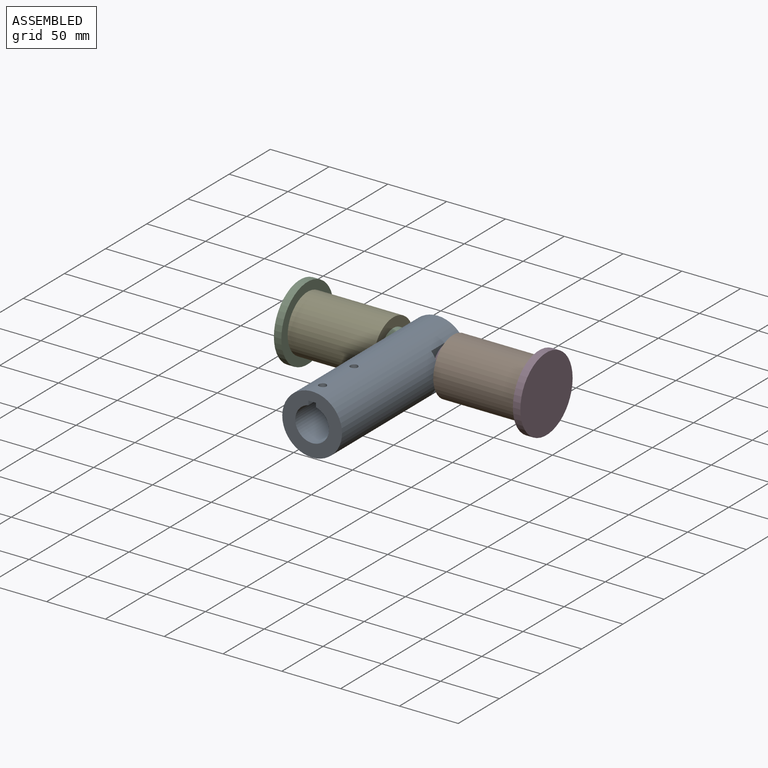
[diagram: assembled view]
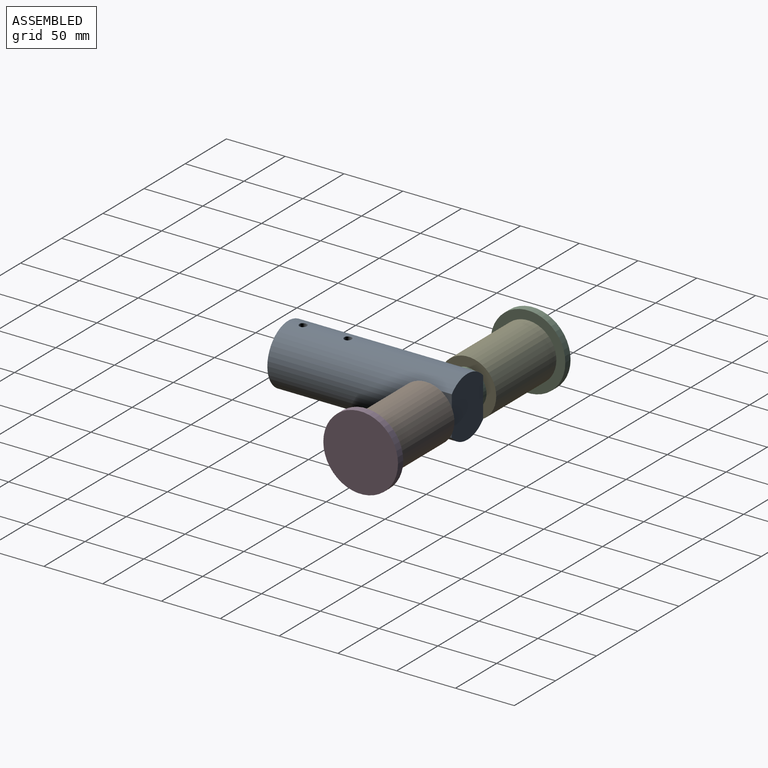
[diagram: assembled view, second angle]
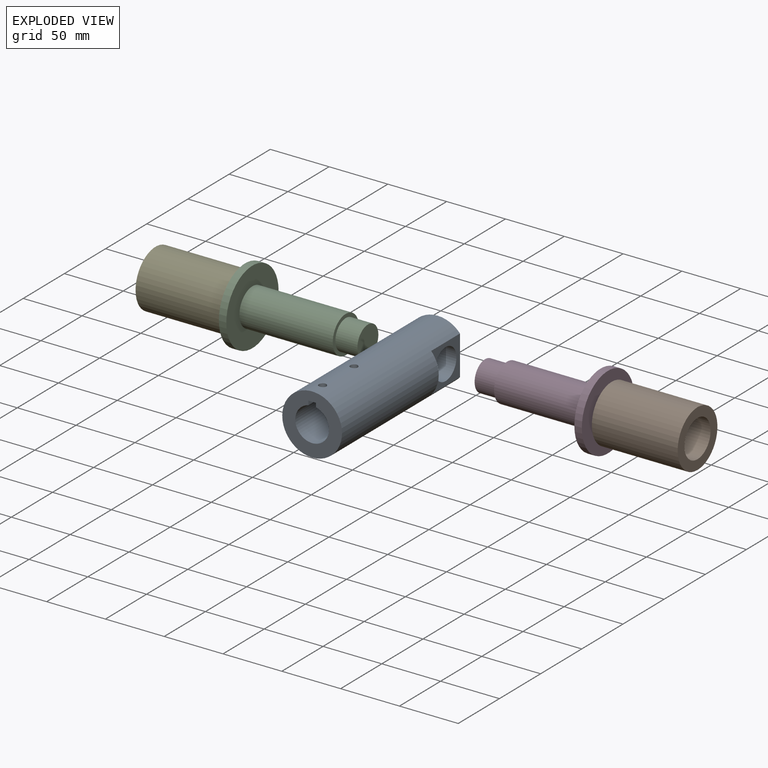
[diagram: exploded view]
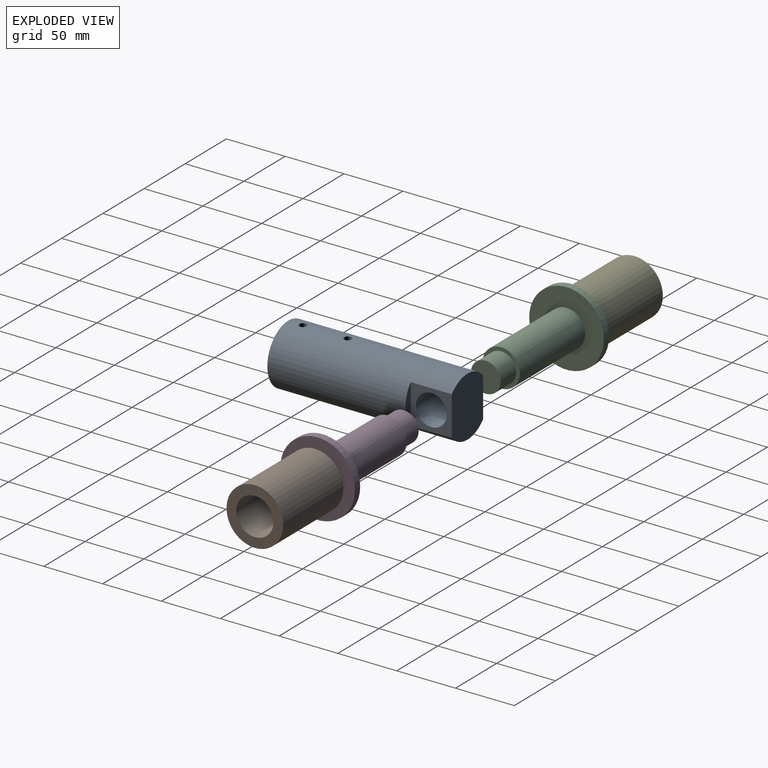
[diagram: exploded view, second angle]
ASSEMBLY  parts=5 mates=8
PART A: 17 faces, bbox 50.8x152.4x50.8 mm
  f0: cylinder r=25.4mm len=152.4mm, axis (0,-1,0), area 21693.9mm2, adj f1,f4,f10,f11,f12,f13,f14,f15
  f1: plane 50.8x38.1mm, normal (0,1,0), area 1734.4mm2, adj f0,f12,f14
  f2: plane 12.7x6.35mm, normal (0,0,-1), area 64.8mm2, adj f4,f5,f7,f11
  f3: plane 38.1x6.35mm, normal (0,0,-1), area 210.3mm2, adj f5,f7,f10,f11
  f4: plane 50.8x50.8mm, normal (0,-1,0), area 1359.3mm2, adj f0,f2,f5,f6,f7
  f5: plane 76.2x3.47mm, normal (1,0,0), area 264.2mm2, adj f2,f3,f4,f6,f8,f9
  f6: cylinder r=14.35mm len=76.2mm, axis (0,-1,0), area 6383mm2, adj f4,f5,f7,f9
  f7: plane 76.2x3.47mm, normal (-1,0,0), area 264.2mm2, adj f2,f3,f4,f6,f8,f9
  f8: plane 25.4x6.35mm, normal (0,0,-1), area 145.5mm2, adj f5,f7,f9,f10
  f9: plane 31.81x28.7mm, normal (0,-1,0), area 667.5mm2, adj f5,f6,f7,f8
  f10: cylinder r=3.17mm len=7.94mm, axis (0,0,-1), area 156.4mm2, adj f0,f3,f8
  f11: cylinder r=3.17mm len=7.94mm, axis (0,0,-1), area 156.4mm2, adj f0,f2,f3
  f12: plane 34.93x33.6mm, normal (-1,0,0), area 634.6mm2, adj f0,f1,f13,f16
  f13: plane 33.6x6.35mm, normal (0,1,0), area 146.2mm2, adj f0,f12
  f14: plane 34.93x33.6mm, normal (1,0,0), area 634.6mm2, adj f0,f1,f15,f16
  f15: plane 33.6x6.35mm, normal (0,1,0), area 146.2mm2, adj f0,f14
  f16: cylinder r=13.1mm len=38.1mm, axis (1,0,0), area 3135.4mm2, adj f12,f14
PART B: 4 faces, bbox 48.3x73x48.3 mm
  f0: cylinder r=15.88mm len=73.03mm, axis (0,-1,0), area 7283.9mm2, adj f2,f3
  f1: cylinder r=24.13mm len=73.03mm, axis (0,-1,0), area 11071.6mm2, adj f2,f3
  f2: plane 48.26x48.26mm, normal (0,1,0), area 1037.5mm2, adj f0,f1
  f3: plane 48.26x48.26mm, normal (0,-1,0), area 1037.5mm2, adj f0,f1
PART C: 7 faces, bbox 63.5x104.5x63.5 mm
  f0: plane 63.5x63.5mm, normal (0,1,0), area 3166.9mm2, adj f1
  f1: cylinder r=31.75mm len=63.5mm, axis (0,-1,0), area 1266.8mm2, adj f0,f2
  f2: plane 63.5x63.5mm, normal (0,-1,0), area 2375.2mm2, adj f1,f3
  f3: cylinder r=15.88mm len=79.38mm, axis (0,-1,0), area 7917.3mm2, adj f2,f4
  f4: plane 31.75x31.75mm, normal (0,-1,0), area 285mm2, adj f3,f5
  f5: cylinder r=12.7mm len=25.4mm, axis (0,-1,0), area 1499.9mm2, adj f4,f6
  f6: plane 25.4x25.4mm, normal (0,-1,0), area 506.7mm2, adj f5
PART D: same geometry as C
PART E: same geometry as B
PLACE A t=(-21.94,-67.62,31.87)mm fixed
PLACE B rot(axis=(-0.58,-0.58,-0.58),120deg) t=(3.46,67.31,31.87)mm
PLACE C rot(axis=(-0.58,0.58,0.58),120deg) t=(-22.2,67.31,31.87)mm
PLACE D rot(axis=(-0.58,-0.58,-0.58),120deg) t=(-21.69,67.31,31.87)mm
PLACE E rot(axis=(0.71,-0.71,0),180deg) t=(-47.34,67.31,31.87)mm
MATE fastened D.f1 <-> B.f0  axis (-1,0,0) through (76.48,67.31,31.87)mm
MATE planar D.f1 <-> A.f14  axis (-1,0,0) through (-2.89,67.31,31.87)mm
MATE planar C.f1 <-> A.f16  axis (1,0,0) through (-40.99,67.31,31.87)mm
MATE cylindrical C.f1 <-> E.f0  axis (1,0,0) through (-80.68,67.31,31.87)mm
MATE cylindrical A.f16 <-> D.f1  axis (1,0,0) through (-21.94,67.31,31.87)mm
MATE fastened C.f1 <-> E.f0  axis (1,0,0) through (-120.37,67.31,31.87)mm
MATE cylindrical C.f1 <-> A.f16  axis (1,0,0) through (-40.99,67.31,31.87)mm
MATE cylindrical D.f1 <-> B.f0  axis (-1,0,0) through (36.8,67.31,31.87)mm
